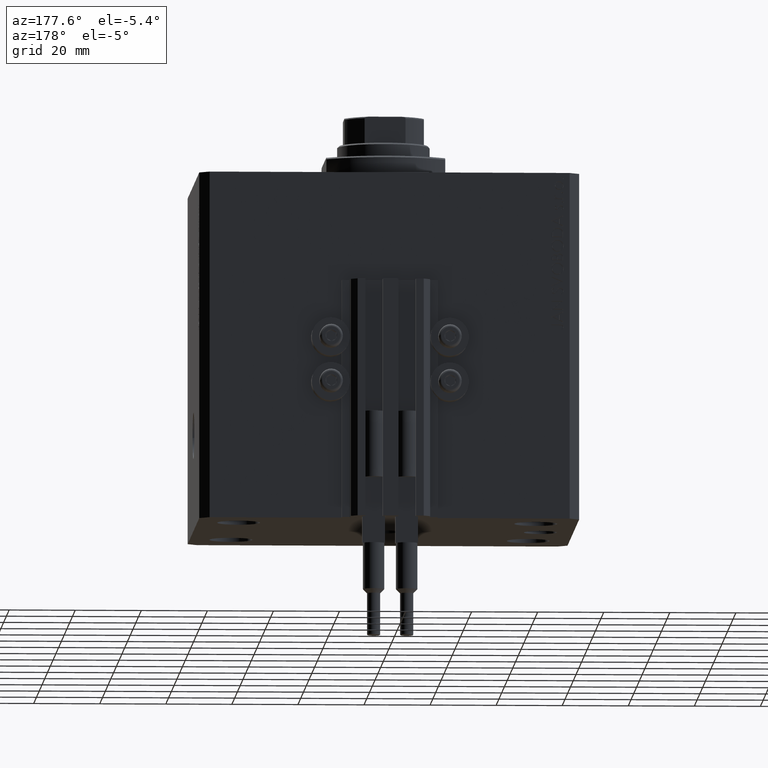
[diagram: clean part render]
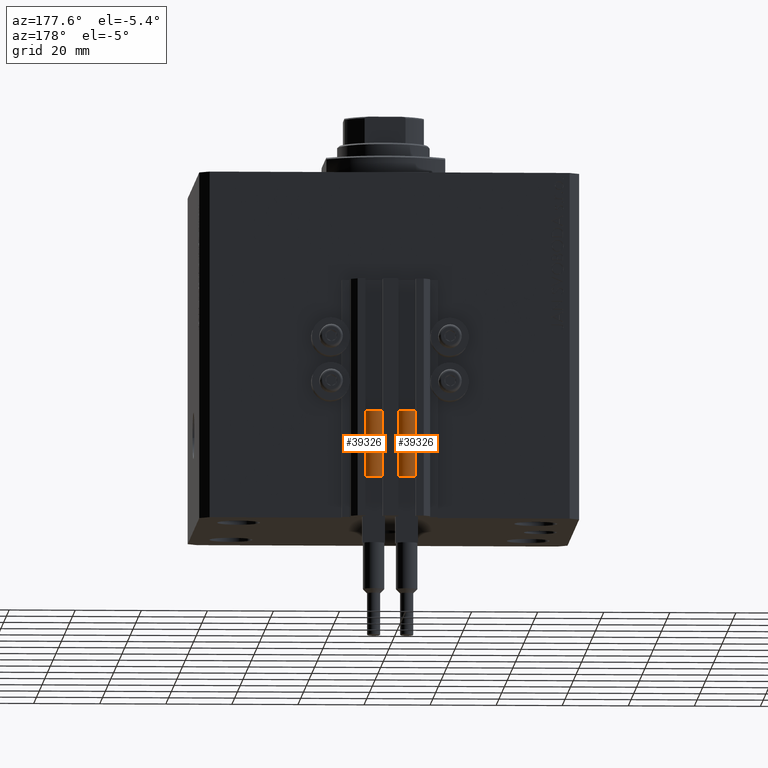
[diagram: same view with one multi-face feature highlighted, each face labeled with its STEP entity id]
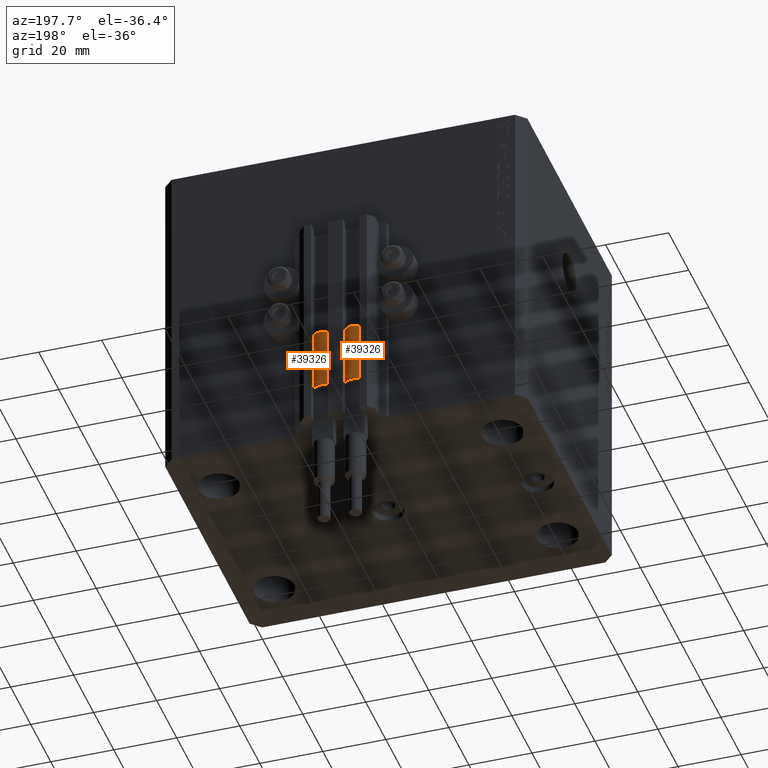
[diagram: same view with one multi-face feature highlighted, each face labeled with its STEP entity id]
A machine part, auxiliary view. The highlighted faces form ONE feature: a constant-radius fillet chain: 2 tangent blend faces with common blend radius 3.4 mm. The faces share edges in the B-rep.
A second angle (auxiliary view) of the same feature is appended — it is thin or edge-on in the first view.
Their STEP definitions:
[1] entity #39326 (Cylinder):
#2267 = EDGE_CURVE ( 'NONE', #25239, #46322, #36507, .T. ) ;
#2720 = EDGE_CURVE ( 'NONE', #47405, #25239, #22557, .T. ) ;
#3385 = CARTESIAN_POINT ( 'NONE',  ( -3.399999999999999467, -4.915049848600952119E-16, 20.00000000000000000 ) ) ;
#4793 = CARTESIAN_POINT ( 'NONE',  ( 3.400000000000000355, 4.163799117101001052E-16, 0.000000000000000000 ) ) ;
#5039 = ORIENTED_EDGE ( 'NONE', *, *, #8472, .T. ) ;
#5397 = AXIS2_PLACEMENT_3D ( 'NONE', #16102, #19282, #45815 ) ;
#5529 = CARTESIAN_POINT ( 'NONE',  ( 0.000000000000000000, 0.000000000000000000, 20.00000000000000000 ) ) ;
#6410 = VECTOR ( 'NONE', #35907, 1000.000000000000000 ) ;
#8257 = CARTESIAN_POINT ( 'NONE',  ( -3.051229260478471428, -1.500000000000000000, 20.00000000000000000 ) ) ;
#8472 = EDGE_CURVE ( 'NONE', #45775, #26314, #37388, .T. ) ;
#10048 = CARTESIAN_POINT ( 'NONE',  ( -3.400000000000000355, 0.000000000000000000, 20.00000000000000000 ) ) ;
#10379 = VECTOR ( 'NONE', #32247, 1000.000000000000000 ) ;
#10426 = EDGE_LOOP ( 'NONE', ( #43619, #14807, #12205, #15298, #16283, #5039 ) ) ;
#12158 = VERTEX_POINT ( 'NONE', #38642 ) ;
#12205 = ORIENTED_EDGE ( 'NONE', *, *, #2267, .F. ) ;
#14093 = EDGE_CURVE ( 'NONE', #46322, #12158, #20464, .T. ) ;
#14240 = DIRECTION ( 'NONE',  ( 1.000000000000000000, 0.000000000000000000, 0.000000000000000000 ) ) ;
#14418 = DIRECTION ( 'NONE',  ( 1.000000000000000000, 0.000000000000000000, 0.000000000000000000 ) ) ;
#14807 = ORIENTED_EDGE ( 'NONE', *, *, #14093, .F. ) ;
#15298 = ORIENTED_EDGE ( 'NONE', *, *, #2720, .F. ) ;
#16102 = CARTESIAN_POINT ( 'NONE',  ( 0.000000000000000000, 0.000000000000000000, 20.00000000000000000 ) ) ;
#16283 = ORIENTED_EDGE ( 'NONE', *, *, #36825, .T. ) ;
#17890 = DIRECTION ( 'NONE',  ( 0.000000000000000000, 0.000000000000000000, 1.000000000000000000 ) ) ;
#19282 = DIRECTION ( 'NONE',  ( 0.000000000000000000, 0.000000000000000000, 1.000000000000000000 ) ) ;
#20377 = EDGE_CURVE ( 'NONE', #12158, #26314, #21024, .T. ) ;
#20464 = CIRCLE ( 'NONE', #36008, 3.400000000000000355 ) ;
#21024 = LINE ( 'NONE', #25157, #10379 ) ;
#21118 = DIRECTION ( 'NONE',  ( 1.000000000000000000, 0.000000000000000000, 0.000000000000000000 ) ) ;
#22557 = CIRCLE ( 'NONE', #5397, 3.400000000000000355 ) ;
#24391 = AXIS2_PLACEMENT_3D ( 'NONE', #36887, #25434, #29342 ) ;
#25157 = CARTESIAN_POINT ( 'NONE',  ( 3.400000000000000355, 4.163799117101001052E-16, 20.00000000000000000 ) ) ;
#25239 = VERTEX_POINT ( 'NONE', #8257 ) ;
#25434 = DIRECTION ( 'NONE',  ( -0.000000000000000000, -0.000000000000000000, -1.000000000000000000 ) ) ;
#26314 = VERTEX_POINT ( 'NONE', #4793 ) ;
#27285 = AXIS2_PLACEMENT_3D ( 'NONE', #47066, #39766, #14418 ) ;
#29342 = DIRECTION ( 'NONE',  ( -1.000000000000000000, 0.000000000000000000, 0.000000000000000000 ) ) ;
#31885 = AXIS2_PLACEMENT_3D ( 'NONE', #46892, #17890, #14240 ) ;
#32247 = DIRECTION ( 'NONE',  ( -0.000000000000000000, -0.000000000000000000, -1.000000000000000000 ) ) ;
#35261 = DIRECTION ( 'NONE',  ( 0.000000000000000000, 0.000000000000000000, 1.000000000000000000 ) ) ;
#35907 = DIRECTION ( 'NONE',  ( -0.000000000000000000, -0.000000000000000000, -1.000000000000000000 ) ) ;
#36008 = AXIS2_PLACEMENT_3D ( 'NONE', #5529, #35261, #21118 ) ;
#36155 = LINE ( 'NONE', #10048, #6410 ) ;
#36507 = CIRCLE ( 'NONE', #31885, 3.400000000000000355 ) ;
#36825 = EDGE_CURVE ( 'NONE', #47405, #45775, #36155, .T. ) ;
#36887 = CARTESIAN_POINT ( 'NONE',  ( 0.000000000000000000, 0.000000000000000000, 20.00000000000000000 ) ) ;
#37126 = CYLINDRICAL_SURFACE ( 'NONE', #24391, 3.400000000000000355 ) ;
#37368 = FACE_OUTER_BOUND ( 'NONE', #10426, .T. ) ;
#37388 = CIRCLE ( 'NONE', #27285, 3.400000000000000355 ) ;
#38204 = CARTESIAN_POINT ( 'NONE',  ( 3.051229260478471428, -1.500000000000000000, 20.00000000000000000 ) ) ;
#38642 = CARTESIAN_POINT ( 'NONE',  ( 3.400000000000000355, 0.000000000000000000, 20.00000000000000000 ) ) ;
#39326 = ADVANCED_FACE ( 'NONE', ( #37368 ), #37126, .T. ) ;
#39568 = CARTESIAN_POINT ( 'NONE',  ( -3.400000000000000355, 0.000000000000000000, 0.000000000000000000 ) ) ;
#39766 = DIRECTION ( 'NONE',  ( 0.000000000000000000, 0.000000000000000000, 1.000000000000000000 ) ) ;
#43619 = ORIENTED_EDGE ( 'NONE', *, *, #20377, .F. ) ;
#45775 = VERTEX_POINT ( 'NONE', #39568 ) ;
#45815 = DIRECTION ( 'NONE',  ( 1.000000000000000000, 0.000000000000000000, 0.000000000000000000 ) ) ;
#46322 = VERTEX_POINT ( 'NONE', #38204 ) ;
#46892 = CARTESIAN_POINT ( 'NONE',  ( 0.000000000000000000, 0.000000000000000000, 20.00000000000000000 ) ) ;
#47066 = CARTESIAN_POINT ( 'NONE',  ( 0.000000000000000000, 0.000000000000000000, 0.000000000000000000 ) ) ;
#47405 = VERTEX_POINT ( 'NONE', #3385 ) ;
[2] entity #39326 (Cylinder):
#2267 = EDGE_CURVE ( 'NONE', #25239, #46322, #36507, .T. ) ;
#2720 = EDGE_CURVE ( 'NONE', #47405, #25239, #22557, .T. ) ;
#3385 = CARTESIAN_POINT ( 'NONE',  ( -3.399999999999999467, -4.915049848600952119E-16, 20.00000000000000000 ) ) ;
#4793 = CARTESIAN_POINT ( 'NONE',  ( 3.400000000000000355, 4.163799117101001052E-16, 0.000000000000000000 ) ) ;
#5039 = ORIENTED_EDGE ( 'NONE', *, *, #8472, .T. ) ;
#5397 = AXIS2_PLACEMENT_3D ( 'NONE', #16102, #19282, #45815 ) ;
#5529 = CARTESIAN_POINT ( 'NONE',  ( 0.000000000000000000, 0.000000000000000000, 20.00000000000000000 ) ) ;
#6410 = VECTOR ( 'NONE', #35907, 1000.000000000000000 ) ;
#8257 = CARTESIAN_POINT ( 'NONE',  ( -3.051229260478471428, -1.500000000000000000, 20.00000000000000000 ) ) ;
#8472 = EDGE_CURVE ( 'NONE', #45775, #26314, #37388, .T. ) ;
#10048 = CARTESIAN_POINT ( 'NONE',  ( -3.400000000000000355, 0.000000000000000000, 20.00000000000000000 ) ) ;
#10379 = VECTOR ( 'NONE', #32247, 1000.000000000000000 ) ;
#10426 = EDGE_LOOP ( 'NONE', ( #43619, #14807, #12205, #15298, #16283, #5039 ) ) ;
#12158 = VERTEX_POINT ( 'NONE', #38642 ) ;
#12205 = ORIENTED_EDGE ( 'NONE', *, *, #2267, .F. ) ;
#14093 = EDGE_CURVE ( 'NONE', #46322, #12158, #20464, .T. ) ;
#14240 = DIRECTION ( 'NONE',  ( 1.000000000000000000, 0.000000000000000000, 0.000000000000000000 ) ) ;
#14418 = DIRECTION ( 'NONE',  ( 1.000000000000000000, 0.000000000000000000, 0.000000000000000000 ) ) ;
#14807 = ORIENTED_EDGE ( 'NONE', *, *, #14093, .F. ) ;
#15298 = ORIENTED_EDGE ( 'NONE', *, *, #2720, .F. ) ;
#16102 = CARTESIAN_POINT ( 'NONE',  ( 0.000000000000000000, 0.000000000000000000, 20.00000000000000000 ) ) ;
#16283 = ORIENTED_EDGE ( 'NONE', *, *, #36825, .T. ) ;
#17890 = DIRECTION ( 'NONE',  ( 0.000000000000000000, 0.000000000000000000, 1.000000000000000000 ) ) ;
#19282 = DIRECTION ( 'NONE',  ( 0.000000000000000000, 0.000000000000000000, 1.000000000000000000 ) ) ;
#20377 = EDGE_CURVE ( 'NONE', #12158, #26314, #21024, .T. ) ;
#20464 = CIRCLE ( 'NONE', #36008, 3.400000000000000355 ) ;
#21024 = LINE ( 'NONE', #25157, #10379 ) ;
#21118 = DIRECTION ( 'NONE',  ( 1.000000000000000000, 0.000000000000000000, 0.000000000000000000 ) ) ;
#22557 = CIRCLE ( 'NONE', #5397, 3.400000000000000355 ) ;
#24391 = AXIS2_PLACEMENT_3D ( 'NONE', #36887, #25434, #29342 ) ;
#25157 = CARTESIAN_POINT ( 'NONE',  ( 3.400000000000000355, 4.163799117101001052E-16, 20.00000000000000000 ) ) ;
#25239 = VERTEX_POINT ( 'NONE', #8257 ) ;
#25434 = DIRECTION ( 'NONE',  ( -0.000000000000000000, -0.000000000000000000, -1.000000000000000000 ) ) ;
#26314 = VERTEX_POINT ( 'NONE', #4793 ) ;
#27285 = AXIS2_PLACEMENT_3D ( 'NONE', #47066, #39766, #14418 ) ;
#29342 = DIRECTION ( 'NONE',  ( -1.000000000000000000, 0.000000000000000000, 0.000000000000000000 ) ) ;
#31885 = AXIS2_PLACEMENT_3D ( 'NONE', #46892, #17890, #14240 ) ;
#32247 = DIRECTION ( 'NONE',  ( -0.000000000000000000, -0.000000000000000000, -1.000000000000000000 ) ) ;
#35261 = DIRECTION ( 'NONE',  ( 0.000000000000000000, 0.000000000000000000, 1.000000000000000000 ) ) ;
#35907 = DIRECTION ( 'NONE',  ( -0.000000000000000000, -0.000000000000000000, -1.000000000000000000 ) ) ;
#36008 = AXIS2_PLACEMENT_3D ( 'NONE', #5529, #35261, #21118 ) ;
#36155 = LINE ( 'NONE', #10048, #6410 ) ;
#36507 = CIRCLE ( 'NONE', #31885, 3.400000000000000355 ) ;
#36825 = EDGE_CURVE ( 'NONE', #47405, #45775, #36155, .T. ) ;
#36887 = CARTESIAN_POINT ( 'NONE',  ( 0.000000000000000000, 0.000000000000000000, 20.00000000000000000 ) ) ;
#37126 = CYLINDRICAL_SURFACE ( 'NONE', #24391, 3.400000000000000355 ) ;
#37368 = FACE_OUTER_BOUND ( 'NONE', #10426, .T. ) ;
#37388 = CIRCLE ( 'NONE', #27285, 3.400000000000000355 ) ;
#38204 = CARTESIAN_POINT ( 'NONE',  ( 3.051229260478471428, -1.500000000000000000, 20.00000000000000000 ) ) ;
#38642 = CARTESIAN_POINT ( 'NONE',  ( 3.400000000000000355, 0.000000000000000000, 20.00000000000000000 ) ) ;
#39326 = ADVANCED_FACE ( 'NONE', ( #37368 ), #37126, .T. ) ;
#39568 = CARTESIAN_POINT ( 'NONE',  ( -3.400000000000000355, 0.000000000000000000, 0.000000000000000000 ) ) ;
#39766 = DIRECTION ( 'NONE',  ( 0.000000000000000000, 0.000000000000000000, 1.000000000000000000 ) ) ;
#43619 = ORIENTED_EDGE ( 'NONE', *, *, #20377, .F. ) ;
#45775 = VERTEX_POINT ( 'NONE', #39568 ) ;
#45815 = DIRECTION ( 'NONE',  ( 1.000000000000000000, 0.000000000000000000, 0.000000000000000000 ) ) ;
#46322 = VERTEX_POINT ( 'NONE', #38204 ) ;
#46892 = CARTESIAN_POINT ( 'NONE',  ( 0.000000000000000000, 0.000000000000000000, 20.00000000000000000 ) ) ;
#47066 = CARTESIAN_POINT ( 'NONE',  ( 0.000000000000000000, 0.000000000000000000, 0.000000000000000000 ) ) ;
#47405 = VERTEX_POINT ( 'NONE', #3385 ) ;